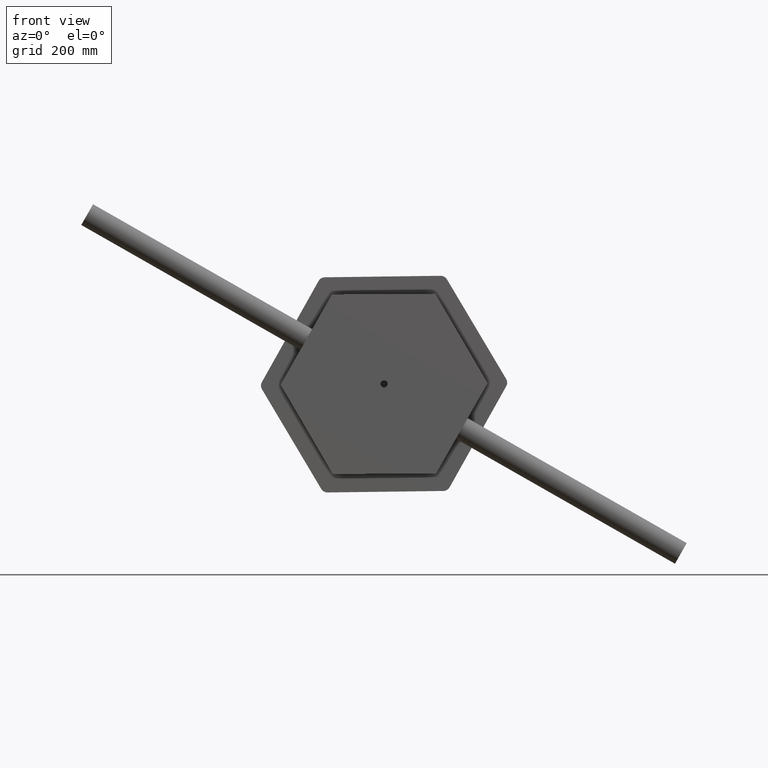
[diagram: clean part render]
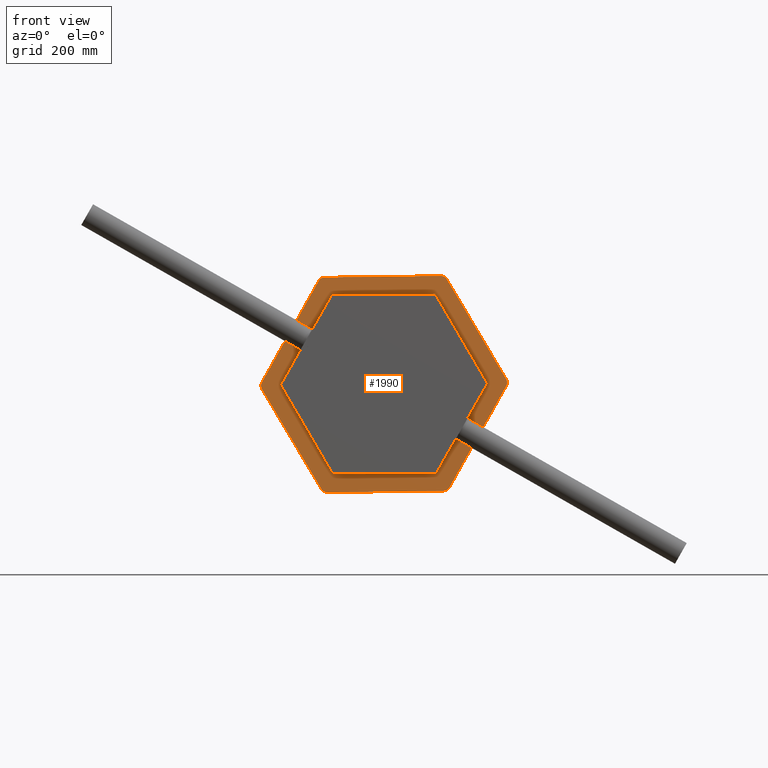
[diagram: same view with one face highlighted and labeled with its STEP entity id]
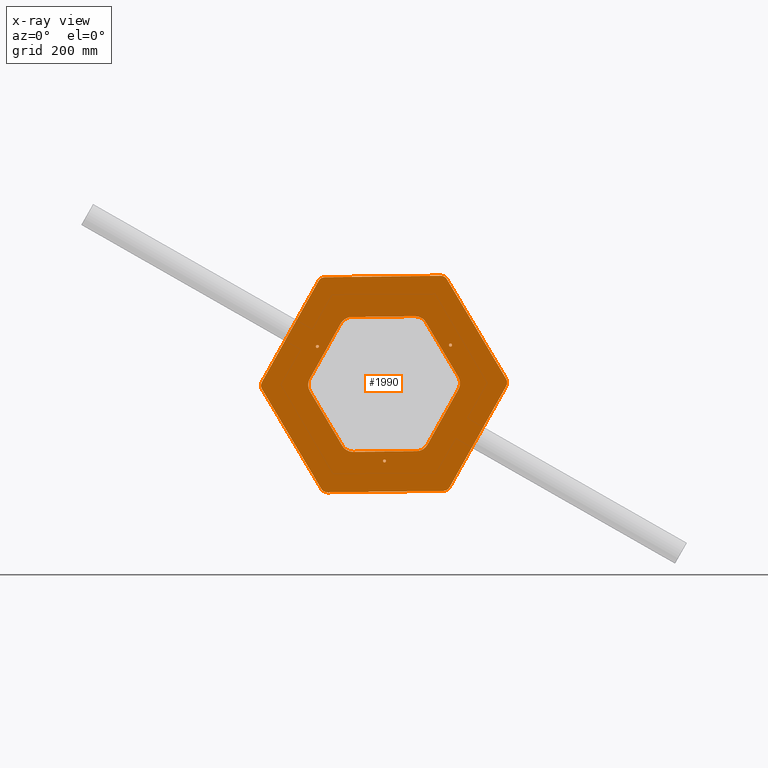
[diagram: x-ray of the same camera — body ghosted, the highlighted face saturated]
A machine part, front view. The second image highlights one B-rep face of the part: STEP entity #1990.
The next image is the same camera in x-ray: the body ghosted, the highlighted face saturated — about 0% of this face is hidden behind the body in this view.
In plain terms, the highlighted planar face has unit normal (-0, 1, -0).
Its self-contained STEP definition (entity closure, byte-faithful):
#84 = EDGE_CURVE ( 'NONE', #5810, #4075, #23431, .T. ) ;
#126 = CIRCLE ( 'NONE', #8567, 12.00000000000001066 ) ;
#365 = CARTESIAN_POINT ( 'NONE',  ( 64.49258023428309627, -110.8974878807650271, 0.0000000000000000000 ) ) ;
#405 = LINE ( 'NONE', #19145, #6575 ) ;
#561 = VERTEX_POINT ( 'NONE', #25670 ) ;
#608 = VERTEX_POINT ( 'NONE', #18104 ) ;
#644 = VERTEX_POINT ( 'NONE', #7818 ) ;
#780 = EDGE_CURVE ( 'NONE', #4075, #23348, #22827, .T. ) ;
#1106 = CARTESIAN_POINT ( 'NONE',  ( 180.0000000000001705, 96.99484522385721164, 0.0000000000000000000 ) ) ;
#1157 = CARTESIAN_POINT ( 'NONE',  ( -102.2335756172569035, -71.23590584283081739, 0.0000000000000000000 ) ) ;
#1326 = EDGE_CURVE ( 'NONE', #6167, #14923, #405, .T. ) ;
#1394 = ORIENTED_EDGE ( 'NONE', *, *, #21909, .T. ) ;
#1468 = DIRECTION ( 'NONE',  ( 1.000000000000000000, 0.0000000000000000000, -3.697785493223490101E-32 ) ) ;
#1494 = VERTEX_POINT ( 'NONE', #13279 ) ;
#1603 = VERTEX_POINT ( 'NONE', #9602 ) ;
#1658 = DIRECTION ( 'NONE',  ( 2.465190328815661892E-32, 2.209041646212159523E-31, -1.000000000000000000 ) ) ;
#1785 = CIRCLE ( 'NONE', #6561, 12.00000000000001066 ) ;
#1791 = ORIENTED_EDGE ( 'NONE', *, *, #19131, .F. ) ;
#1810 = VERTEX_POINT ( 'NONE', #2226 ) ;
#1943 = EDGE_CURVE ( 'NONE', #12946, #32106, #13625, .T. ) ;
#1990 = ADVANCED_FACE ( 'NONE', ( #32776, #25944, #12202, #5293, #31969 ), #24203, .F. ) ;
#2054 = VERTEX_POINT ( 'NONE', #22561 ) ;
#2192 = CARTESIAN_POINT ( 'NONE',  ( -128.5606159927934016, -0.9905632959438664953, 0.0000000000000000000 ) ) ;
#2226 = CARTESIAN_POINT ( 'NONE',  ( -180.0000000000001990, 96.99484522385718321, 0.0000000000000000000 ) ) ;
#2241 = CARTESIAN_POINT ( 'NONE',  ( 10.57531631285928242, 124.1548265256773078, 0.0000000000000000000 ) ) ;
#2981 = VECTOR ( 'NONE', #20474, 1000.000000000000114 ) ;
#3006 = DIRECTION ( 'NONE',  ( -1.000000000000000000, 0.0000000000000000000, 3.697785493223486269E-32 ) ) ;
#3247 = EDGE_CURVE ( 'NONE', #23348, #10241, #32062, .T. ) ;
#3532 = CARTESIAN_POINT ( 'NONE',  ( -112.8088919301162178, -2.775557561562891351E-14, 0.0000000000000000000 ) ) ;
#3857 = ORIENTED_EDGE ( 'NONE', *, *, #8506, .F. ) ;
#3871 = ORIENTED_EDGE ( 'NONE', *, *, #12719, .T. ) ;
#4011 = DIRECTION ( 'NONE',  ( 0.8660254037844385966, 0.4999999999999998890, -1.479114197289395821E-31 ) ) ;
#4075 = VERTEX_POINT ( 'NONE', #6337 ) ;
#4200 = CIRCLE ( 'NONE', #25917, 12.00000000000001066 ) ;
#4573 = DIRECTION ( 'NONE',  ( 2.465190328815661892E-32, 2.209041646212159523E-31, -1.000000000000000000 ) ) ;
#4839 = DIRECTION ( 'NONE',  ( -1.000000000000000000, 0.0000000000000000000, 3.697785493223476416E-32 ) ) ;
#5257 = VERTEX_POINT ( 'NONE', #8679 ) ;
#5293 = FACE_BOUND ( 'NONE', #10434, .T. ) ;
#5426 = CIRCLE ( 'NONE', #22372, 2.499999999999932943 ) ;
#5810 = VERTEX_POINT ( 'NONE', #29427 ) ;
#5830 = ORIENTED_EDGE ( 'NONE', *, *, #14311, .T. ) ;
#5915 = AXIS2_PLACEMENT_3D ( 'NONE', #23746, #23693, #23623 ) ;
#5954 = ORIENTED_EDGE ( 'NONE', *, *, #1943, .T. ) ;
#6069 = LINE ( 'NONE', #11754, #12156 ) ;
#6167 = VERTEX_POINT ( 'NONE', #15297 ) ;
#6169 = DIRECTION ( 'NONE',  ( 4.735795089416679423E-16, -1.000000000000000000, 2.863857827303817086E-31 ) ) ;
#6270 = CARTESIAN_POINT ( 'NONE',  ( 102.2335756172568040, 71.23590584283090266, 1.387778780781445676E-14 ) ) ;
#6337 = CARTESIAN_POINT ( 'NONE',  ( 102.2335756172568040, 71.23590584283090266, 1.387778780781445676E-14 ) ) ;
#6345 = ORIENTED_EDGE ( 'NONE', *, *, #23917, .F. ) ;
#6479 = CARTESIAN_POINT ( 'NONE',  ( 112.8088919301160757, 60.69584912965074608, -3.969378218359469749E-30 ) ) ;
#6506 = CARTESIAN_POINT ( 'NONE',  ( 112.8088919301160331, 52.91892068284674622, 0.0000000000000000000 ) ) ;
#6561 = AXIS2_PLACEMENT_3D ( 'NONE', #10248, #28282, #12808 ) ;
#6575 = VECTOR ( 'NONE', #18454, 1000.000000000000000 ) ;
#6827 = CARTESIAN_POINT ( 'NONE',  ( 61.19974159824987225, 111.8859771665177902, 9.244463733058806539E-32 ) ) ;
#6840 = DIRECTION ( 'NONE',  ( -9.471590178833358847E-16, 1.000000000000000000, -2.039559811106081017E-31 ) ) ;
#6871 = CIRCLE ( 'NONE', #31927, 12.00000000000001066 ) ;
#7215 = EDGE_CURVE ( 'NONE', #1810, #5257, #4200, .T. ) ;
#7233 = ORIENTED_EDGE ( 'NONE', *, *, #7215, .T. ) ;
#7402 = LINE ( 'NONE', #3532, #20326 ) ;
#7818 = CARTESIAN_POINT ( 'NONE',  ( -131.0606159927933163, -0.9905632959438664953, 9.244463733058391623E-32 ) ) ;
#7928 = LINE ( 'NONE', #24918, #13969 ) ;
#8311 = DIRECTION ( 'NONE',  ( 0.8660254037844387076, -0.4999999999999998335, 4.930380657631319952E-32 ) ) ;
#8460 = EDGE_CURVE ( 'NONE', #608, #30665, #19077, .T. ) ;
#8506 = EDGE_CURVE ( 'NONE', #23437, #5257, #30400, .T. ) ;
#8567 = AXIS2_PLACEMENT_3D ( 'NONE', #17224, #1658, #19813 ) ;
#8614 = CARTESIAN_POINT ( 'NONE',  ( 108.9685932156029367, 67.34744161942893470, -2.594684408512079348E-30 ) ) ;
#8679 = CARTESIAN_POINT ( 'NONE',  ( -174.0000000000002274, 107.3871500692704188, 0.0000000000000000000 ) ) ;
#8781 = CARTESIAN_POINT ( 'NONE',  ( -168.0000000000001705, 96.99484522385718321, 0.0000000000000000000 ) ) ;
#8858 = AXIS2_PLACEMENT_3D ( 'NONE', #25313, #9892, #27920 ) ;
#8882 = ORIENTED_EDGE ( 'NONE', *, *, #84, .T. ) ;
#9106 = CARTESIAN_POINT ( 'NONE',  ( 63.69974159824990068, 111.8859771665177902, 0.0000000000000000000 ) ) ;
#9400 = ORIENTED_EDGE ( 'NONE', *, *, #22097, .T. ) ;
#9588 = ORIENTED_EDGE ( 'NONE', *, *, #24652, .T. ) ;
#9602 = CARTESIAN_POINT ( 'NONE',  ( 180.0000000000001705, -96.99484522385721164, 0.0000000000000000000 ) ) ;
#9664 = VERTEX_POINT ( 'NONE', #21780 ) ;
#9709 = EDGE_CURVE ( 'NONE', #1603, #14923, #33126, .T. ) ;
#9892 = DIRECTION ( 'NONE',  ( 2.465190328815661892E-32, 2.209041646212159523E-31, -1.000000000000000000 ) ) ;
#10003 = CARTESIAN_POINT ( 'NONE',  ( -102.2335756172569035, -71.23590584283081739, 0.0000000000000000000 ) ) ;
#10216 = CARTESIAN_POINT ( 'NONE',  ( -10.57531631285922913, 124.1548265256772794, 0.0000000000000000000 ) ) ;
#10241 = VERTEX_POINT ( 'NONE', #27732 ) ;
#10248 = CARTESIAN_POINT ( 'NONE',  ( -168.0000000000001137, -96.99484522385724006, 1.387778780781445676E-14 ) ) ;
#10259 = CIRCLE ( 'NONE', #29560, 2.499999999999919176 ) ;
#10305 =( BOUNDED_CURVE ( )  B_SPLINE_CURVE ( 3, ( #29913, #14443, #32502, #17042 ),
 .UNSPECIFIED., .F., .F. ) 
 B_SPLINE_CURVE_WITH_KNOTS ( ( 4, 4 ),
 ( 2.640144173555564411, 3.643041133624030703 ),
 .UNSPECIFIED. ) 
 CURVE ( )  GEOMETRIC_REPRESENTATION_ITEM ( )  RATIONAL_B_SPLINE_CURVE ( ( 1.000000000000000000, 0.9179248021248422873, 0.9179248021248422873, 1.000000000000000000 ) ) 
 REPRESENTATION_ITEM ( '' )  );
#10432 = CARTESIAN_POINT ( 'NONE',  ( 10.57531631285928242, 124.1548265256773078, 0.0000000000000000000 ) ) ;
#10434 = EDGE_LOOP ( 'NONE', ( #9588, #31964, #5830, #1394, #11033, #8882, #30172, #26588, #9400, #5954, #32695, #12815 ) ) ;
#10610 = CARTESIAN_POINT ( 'NONE',  ( -6.000000000000014211, 204.3819952931277157, 0.0000000000000000000 ) ) ;
#10618 = CARTESIAN_POINT ( 'NONE',  ( 3.840298714513159961, 128.0432907490793184, -6.627899148478521488E-30 ) ) ;
#10780 = ORIENTED_EDGE ( 'NONE', *, *, #28541, .T. ) ;
#11001 = CARTESIAN_POINT ( 'NONE',  ( 61.99258023428316733, -110.8974878807650271, 9.244463733058467162E-32 ) ) ;
#11033 = ORIENTED_EDGE ( 'NONE', *, *, #12713, .T. ) ;
#11094 = DIRECTION ( 'NONE',  ( 2.465190328815661892E-32, 2.209041646212159523E-31, -1.000000000000000000 ) ) ;
#11301 = LINE ( 'NONE', #13152, #31861 ) ;
#11385 = DIRECTION ( 'NONE',  ( 1.000000000000000000, 3.469446951953611033E-15, -3.697785493223411278E-32 ) ) ;
#11644 = CARTESIAN_POINT ( 'NONE',  ( -3.840298714513107559, 128.0432907490793184, -6.817240493494143771E-30 ) ) ;
#11712 = DIRECTION ( 'NONE',  ( -1.000000000000000000, 0.0000000000000000000, 3.697785493223488459E-32 ) ) ;
#11754 = CARTESIAN_POINT ( 'NONE',  ( 56.40444596505810182, -97.69536618425401286, 1.387778780781445676E-14 ) ) ;
#11802 = EDGE_CURVE ( 'NONE', #27040, #20625, #13661, .T. ) ;
#11867 = CARTESIAN_POINT ( 'NONE',  ( -10.57531631285923979, -124.1548265256773362, 0.0000000000000000000 ) ) ;
#12156 = VECTOR ( 'NONE', #4011, 1000.000000000000227 ) ;
#12202 = FACE_BOUND ( 'NONE', #29752, .T. ) ;
#12294 = ORIENTED_EDGE ( 'NONE', *, *, #11802, .T. ) ;
#12354 = CARTESIAN_POINT ( 'NONE',  ( 180.0000000000001705, -103.9230484541326973, 0.0000000000000000000 ) ) ;
#12450 = ORIENTED_EDGE ( 'NONE', *, *, #21500, .F. ) ;
#12484 = CARTESIAN_POINT ( 'NONE',  ( 174.0000000000001421, -107.3871500692704899, 0.0000000000000000000 ) ) ;
#12567 = CARTESIAN_POINT ( 'NONE',  ( 63.69974159824990068, 111.8859771665177902, 0.0000000000000000000 ) ) ;
#12575 = ORIENTED_EDGE ( 'NONE', *, *, #13946, .F. ) ;
#12713 = EDGE_CURVE ( 'NONE', #9664, #5810, #7928, .T. ) ;
#12719 = EDGE_CURVE ( 'NONE', #6167, #30442, #126, .T. ) ;
#12808 = DIRECTION ( 'NONE',  ( 1.000000000000000000, -2.312964634635740689E-15, 0.0000000000000000000 ) ) ;
#12815 = ORIENTED_EDGE ( 'NONE', *, *, #30648, .T. ) ;
#12946 = VERTEX_POINT ( 'NONE', #12948 ) ;
#12948 = CARTESIAN_POINT ( 'NONE',  ( -102.2335756172569887, 71.23590584283077476, 0.0000000000000000000 ) ) ;
#12997 = LINE ( 'NONE', #33271, #33555 ) ;
#13152 = CARTESIAN_POINT ( 'NONE',  ( -180.0000000000001990, 103.9230484541326689, 0.0000000000000000000 ) ) ;
#13249 = CARTESIAN_POINT ( 'NONE',  ( -174.0000000000001137, -107.3871500692705467, 0.0000000000000000000 ) ) ;
#13279 = CARTESIAN_POINT ( 'NONE',  ( 66.19974159824991489, 111.8859771665177902, 0.0000000000000000000 ) ) ;
#13625 =( BOUNDED_CURVE ( )  B_SPLINE_CURVE ( 3, ( #25994, #26328, #26709, #26032 ),
 .UNSPECIFIED., .F., .T. ) 
 B_SPLINE_CURVE_WITH_KNOTS ( ( 4, 4 ),
 ( 2.640144173555560858, 3.643041133624025374 ),
 .UNSPECIFIED. ) 
 CURVE ( )  GEOMETRIC_REPRESENTATION_ITEM ( )  RATIONAL_B_SPLINE_CURVE ( ( 1.000000000000000000, 0.9179248021248425093, 0.9179248021248425093, 1.000000000000000000 ) ) 
 REPRESENTATION_ITEM ( '' )  );
#13661 = CIRCLE ( 'NONE', #22132, 12.00000000000001066 ) ;
#13908 = ORIENTED_EDGE ( 'NONE', *, *, #19220, .T. ) ;
#13941 = CARTESIAN_POINT ( 'NONE',  ( -126.0606159927934726, -0.9905632959438662732, 6.162975822038932493E-32 ) ) ;
#13946 = EDGE_CURVE ( 'NONE', #27040, #26777, #12997, .T. ) ;
#13969 = VECTOR ( 'NONE', #6840, 1000.000000000000000 ) ;
#14005 = CIRCLE ( 'NONE', #8858, 2.499999999999919176 ) ;
#14311 = EDGE_CURVE ( 'NONE', #30665, #2054, #6069, .T. ) ;
#14427 = CARTESIAN_POINT ( 'NONE',  ( 3.840298714513118217, -128.0432907490793184, 4.826576614464210706E-30 ) ) ;
#14443 = CARTESIAN_POINT ( 'NONE',  ( 108.9685932156030646, -67.34744161942882101, 1.604914286885437753E-30 ) ) ;
#14923 = VERTEX_POINT ( 'NONE', #12484 ) ;
#14931 = DIRECTION ( 'NONE',  ( 0.0000000000000000000, 1.000000000000000000, -2.210967576156545008E-31 ) ) ;
#15021 = CARTESIAN_POINT ( 'NONE',  ( 10.57531631285922380, -124.1548265256773078, 0.0000000000000000000 ) ) ;
#15053 = EDGE_CURVE ( 'NONE', #1810, #19178, #11301, .T. ) ;
#15145 = DIRECTION ( 'NONE',  ( -1.000000000000000000, 0.0000000000000000000, 3.697785493223488459E-32 ) ) ;
#15297 = CARTESIAN_POINT ( 'NONE',  ( 5.999999999999992895, -204.3819952931276305, 0.0000000000000000000 ) ) ;
#15314 = DIRECTION ( 'NONE',  ( 2.465190328815661892E-32, 2.209041646212159523E-31, -1.000000000000000000 ) ) ;
#16142 = VECTOR ( 'NONE', #8311, 1000.000000000000114 ) ;
#16919 = ORIENTED_EDGE ( 'NONE', *, *, #1326, .F. ) ;
#17040 = DIRECTION ( 'NONE',  ( 2.465190328815661892E-32, 2.209041646212159523E-31, -1.000000000000000000 ) ) ;
#17042 = CARTESIAN_POINT ( 'NONE',  ( 112.8088919301161752, -52.91892068284658990, 0.0000000000000000000 ) ) ;
#17125 = CARTESIAN_POINT ( 'NONE',  ( 1.214306433183764966E-14, 207.8460969082653946, 0.0000000000000000000 ) ) ;
#17224 = CARTESIAN_POINT ( 'NONE',  ( -1.734723475976807094E-14, -193.9896904477143948, 0.0000000000000000000 ) ) ;
#17235 = ORIENTED_EDGE ( 'NONE', *, *, #27605, .F. ) ;
#17623 = EDGE_CURVE ( 'NONE', #29449, #30442, #32076, .T. ) ;
#17656 = CARTESIAN_POINT ( 'NONE',  ( -112.8088919301162463, -60.69584912965064660, 3.969378218359464143E-30 ) ) ;
#18062 = LINE ( 'NONE', #12354, #24932 ) ;
#18104 = CARTESIAN_POINT ( 'NONE',  ( -10.57531631285923979, -124.1548265256773362, 0.0000000000000000000 ) ) ;
#18365 = VECTOR ( 'NONE', #20232, 999.9999999999998863 ) ;
#18454 = DIRECTION ( 'NONE',  ( 0.8660254037844385966, 0.5000000000000001110, -1.479114197289395821E-31 ) ) ;
#18557 = DIRECTION ( 'NONE',  ( 2.465190328815661892E-32, 2.209041646212159523E-31, -1.000000000000000000 ) ) ;
#18673 = CIRCLE ( 'NONE', #18938, 2.500000000000023093 ) ;
#18938 = AXIS2_PLACEMENT_3D ( 'NONE', #9106, #27152, #11712 ) ;
#19030 = AXIS2_PLACEMENT_3D ( 'NONE', #12567, #30604, #15145 ) ;
#19060 = CARTESIAN_POINT ( 'NONE',  ( -112.8088919301161894, -52.91892068284661832, 0.0000000000000000000 ) ) ;
#19077 =( BOUNDED_CURVE ( )  B_SPLINE_CURVE ( 3, ( #11867, #29896, #14427, #32486 ),
 .UNSPECIFIED., .F., .F. ) 
 B_SPLINE_CURVE_WITH_KNOTS ( ( 4, 4 ),
 ( 2.640144173555560858, 3.643041133624025374 ),
 .UNSPECIFIED. ) 
 CURVE ( )  GEOMETRIC_REPRESENTATION_ITEM ( )  RATIONAL_B_SPLINE_CURVE ( ( 1.000000000000000000, 0.9179248021248425093, 0.9179248021248425093, 1.000000000000000000 ) ) 
 REPRESENTATION_ITEM ( '' )  );
#19131 = EDGE_CURVE ( 'NONE', #1603, #20625, #18062, .T. ) ;
#19145 = CARTESIAN_POINT ( 'NONE',  ( -3.469446951953614189E-14, -207.8460969082654231, 0.0000000000000000000 ) ) ;
#19178 = VERTEX_POINT ( 'NONE', #33209 ) ;
#19220 = EDGE_CURVE ( 'NONE', #29449, #19178, #1785, .T. ) ;
#19427 = CARTESIAN_POINT ( 'NONE',  ( 174.0000000000001421, 107.3871500692704473, 0.0000000000000000000 ) ) ;
#19509 = VECTOR ( 'NONE', #29936, 1000.000000000000114 ) ;
#19813 = DIRECTION ( 'NONE',  ( 1.000000000000000000, 0.0000000000000000000, -3.697785493223490101E-32 ) ) ;
#20066 = ORIENTED_EDGE ( 'NONE', *, *, #17623, .F. ) ;
#20075 = ORIENTED_EDGE ( 'NONE', *, *, #15053, .F. ) ;
#20086 = CARTESIAN_POINT ( 'NONE',  ( 64.49258023428309627, -110.8974878807650271, 0.0000000000000000000 ) ) ;
#20098 = ORIENTED_EDGE ( 'NONE', *, *, #32914, .F. ) ;
#20221 = CARTESIAN_POINT ( 'NONE',  ( -108.9685932156030930, -67.34744161942884944, 2.594684408512065335E-30 ) ) ;
#20232 = DIRECTION ( 'NONE',  ( 0.8660254037844387076, -0.5000000000000001110, 7.395570986446982391E-32 ) ) ;
#20310 = EDGE_CURVE ( 'NONE', #561, #22475, #5426, .T. ) ;
#20326 = VECTOR ( 'NONE', #6169, 1000.000000000000000 ) ;
#20334 = DIRECTION ( 'NONE',  ( 2.465190328815661892E-32, 2.209041646212159523E-31, -1.000000000000000000 ) ) ;
#20474 = DIRECTION ( 'NONE',  ( -0.8660254037844387076, 0.4999999999999997224, -6.162975822039148161E-32 ) ) ;
#20625 = VERTEX_POINT ( 'NONE', #1106 ) ;
#20863 = EDGE_LOOP ( 'NONE', ( #20098, #25202 ) ) ;
#21079 = CIRCLE ( 'NONE', #33523, 2.499999999999932943 ) ;
#21120 = LINE ( 'NONE', #32425, #19509 ) ;
#21500 = EDGE_CURVE ( 'NONE', #644, #32604, #10259, .T. ) ;
#21780 = CARTESIAN_POINT ( 'NONE',  ( 112.8088919301161752, -52.91892068284658990, 0.0000000000000000000 ) ) ;
#21909 = EDGE_CURVE ( 'NONE', #2054, #9664, #10305, .T. ) ;
#22097 = EDGE_CURVE ( 'NONE', #10241, #12946, #21120, .T. ) ;
#22132 = AXIS2_PLACEMENT_3D ( 'NONE', #30752, #15314, #33335 ) ;
#22372 = AXIS2_PLACEMENT_3D ( 'NONE', #20086, #4573, #22675 ) ;
#22475 = VERTEX_POINT ( 'NONE', #11001 ) ;
#22561 = CARTESIAN_POINT ( 'NONE',  ( 102.2335756172569319, -71.23590584283078897, 0.0000000000000000000 ) ) ;
#22675 = DIRECTION ( 'NONE',  ( -1.000000000000000000, 0.0000000000000000000, 3.697785493223486269E-32 ) ) ;
#22819 = CARTESIAN_POINT ( 'NONE',  ( -180.0000000000001990, -103.9230484541327542, 0.0000000000000000000 ) ) ;
#22827 = LINE ( 'NONE', #23105, #2981 ) ;
#23105 = CARTESIAN_POINT ( 'NONE',  ( 56.40444596505808761, 97.69536618425405550, 1.387778780781445676E-14 ) ) ;
#23348 = VERTEX_POINT ( 'NONE', #2241 ) ;
#23431 =( BOUNDED_CURVE ( )  B_SPLINE_CURVE ( 3, ( #6506, #6479, #8614, #6270 ),
 .UNSPECIFIED., .F., .T. ) 
 B_SPLINE_CURVE_WITH_KNOTS ( ( 4, 4 ),
 ( 2.640144173555559082, 3.643041133624024042 ),
 .UNSPECIFIED. ) 
 CURVE ( )  GEOMETRIC_REPRESENTATION_ITEM ( )  RATIONAL_B_SPLINE_CURVE ( ( 1.000000000000000000, 0.9179248021248423983, 0.9179248021248423983, 1.000000000000000000 ) ) 
 REPRESENTATION_ITEM ( '' )  );
#23437 = VERTEX_POINT ( 'NONE', #10610 ) ;
#23623 = DIRECTION ( 'NONE',  ( 1.000000000000000000, 0.0000000000000000000, -3.697785493223489554E-32 ) ) ;
#23693 = DIRECTION ( 'NONE',  ( 3.697785493223489554E-32, -2.209041646212159523E-31, 1.000000000000000000 ) ) ;
#23746 = CARTESIAN_POINT ( 'NONE',  ( 0.0000000000000000000, 0.0000000000000000000, 0.0000000000000000000 ) ) ;
#23917 = EDGE_CURVE ( 'NONE', #31701, #1494, #33113, .T. ) ;
#24203 = PLANE ( 'NONE',  #5915 ) ;
#24652 = EDGE_CURVE ( 'NONE', #32160, #608, #28255, .T. ) ;
#24918 = CARTESIAN_POINT ( 'NONE',  ( 112.8088919301161184, 1.110223024625156540E-13, 0.0000000000000000000 ) ) ;
#24932 = VECTOR ( 'NONE', #14931, 1000.000000000000000 ) ;
#25122 = ORIENTED_EDGE ( 'NONE', *, *, #9709, .T. ) ;
#25202 = ORIENTED_EDGE ( 'NONE', *, *, #20310, .F. ) ;
#25313 = CARTESIAN_POINT ( 'NONE',  ( -128.5606159927934016, -0.9905632959438664953, 0.0000000000000000000 ) ) ;
#25433 = CARTESIAN_POINT ( 'NONE',  ( -112.8088919301161894, -52.91892068284661832, 0.0000000000000000000 ) ) ;
#25522 = DIRECTION ( 'NONE',  ( -0.8660254037844385966, 0.5000000000000001110, -8.628166150854811148E-32 ) ) ;
#25670 = CARTESIAN_POINT ( 'NONE',  ( 66.99258023428303943, -110.8974878807649844, 0.0000000000000000000 ) ) ;
#25888 = EDGE_CURVE ( 'NONE', #32106, #33492, #7402, .T. ) ;
#25906 = CARTESIAN_POINT ( 'NONE',  ( 6.000000000000039080, 204.3819952931276021, 0.0000000000000000000 ) ) ;
#25917 = AXIS2_PLACEMENT_3D ( 'NONE', #8781, #26829, #11385 ) ;
#25944 = FACE_BOUND ( 'NONE', #26143, .T. ) ;
#25994 = CARTESIAN_POINT ( 'NONE',  ( -102.2335756172569887, 71.23590584283077476, 0.0000000000000000000 ) ) ;
#26032 = CARTESIAN_POINT ( 'NONE',  ( -112.8088919301162463, 52.91892068284662543, 0.0000000000000000000 ) ) ;
#26143 = EDGE_LOOP ( 'NONE', ( #12450, #33114 ) ) ;
#26328 = CARTESIAN_POINT ( 'NONE',  ( -108.9685932156031214, 67.34744161942880680, -1.306547803845800101E-30 ) ) ;
#26540 = CARTESIAN_POINT ( 'NONE',  ( 6.938893903907228378E-15, 193.9896904477144233, 1.387778780781445676E-14 ) ) ;
#26588 = ORIENTED_EDGE ( 'NONE', *, *, #3247, .T. ) ;
#26589 = CARTESIAN_POINT ( 'NONE',  ( -6.000000000000127010, -204.3819952931277442, 0.0000000000000000000 ) ) ;
#26709 = CARTESIAN_POINT ( 'NONE',  ( -112.8088919301162321, 60.69584912965062529, -2.870582958708811908E-30 ) ) ;
#26777 = VERTEX_POINT ( 'NONE', #25906 ) ;
#26829 = DIRECTION ( 'NONE',  ( 2.465190328815661892E-32, 2.209041646212159523E-31, -1.000000000000000000 ) ) ;
#26948 = EDGE_LOOP ( 'NONE', ( #3857, #10780, #12575, #12294, #1791, #25122, #16919, #3871, #20066, #13908, #20075, #7233 ) ) ;
#27040 = VERTEX_POINT ( 'NONE', #19427 ) ;
#27152 = DIRECTION ( 'NONE',  ( 2.465190328815661892E-32, 2.209041646212159523E-31, -1.000000000000000000 ) ) ;
#27605 = EDGE_CURVE ( 'NONE', #1494, #31701, #18673, .T. ) ;
#27732 = CARTESIAN_POINT ( 'NONE',  ( -10.57531631285922913, 124.1548265256772794, 0.0000000000000000000 ) ) ;
#27920 = DIRECTION ( 'NONE',  ( -1.000000000000000000, 0.0000000000000000000, 3.697785493223476416E-32 ) ) ;
#28255 = LINE ( 'NONE', #31444, #16142 ) ;
#28282 = DIRECTION ( 'NONE',  ( 2.465190328815661892E-32, 2.209041646212159523E-31, -1.000000000000000000 ) ) ;
#28541 = EDGE_CURVE ( 'NONE', #23437, #26777, #6871, .T. ) ;
#28587 = AXIS2_PLACEMENT_3D ( 'NONE', #32500, #17040, #1468 ) ;
#28621 = DIRECTION ( 'NONE',  ( 0.0000000000000000000, -1.000000000000000000, 2.210967576156545446E-31 ) ) ;
#29109 = DIRECTION ( 'NONE',  ( 1.000000000000000000, 0.0000000000000000000, 0.0000000000000000000 ) ) ;
#29193 =( BOUNDED_CURVE ( )  B_SPLINE_CURVE ( 3, ( #25433, #17656, #20221, #10003 ),
 .UNSPECIFIED., .F., .T. ) 
 B_SPLINE_CURVE_WITH_KNOTS ( ( 4, 4 ),
 ( 2.640144173555559970, 3.643041133624028483 ),
 .UNSPECIFIED. ) 
 CURVE ( )  GEOMETRIC_REPRESENTATION_ITEM ( )  RATIONAL_B_SPLINE_CURVE ( ( 1.000000000000000000, 0.9179248021248418432, 0.9179248021248418432, 1.000000000000000000 ) ) 
 REPRESENTATION_ITEM ( '' )  );
#29389 = CARTESIAN_POINT ( 'NONE',  ( -112.8088919301162463, 52.91892068284662543, 0.0000000000000000000 ) ) ;
#29427 = CARTESIAN_POINT ( 'NONE',  ( 112.8088919301160331, 52.91892068284674622, 0.0000000000000000000 ) ) ;
#29449 = VERTEX_POINT ( 'NONE', #13249 ) ;
#29560 = AXIS2_PLACEMENT_3D ( 'NONE', #2192, #20334, #4839 ) ;
#29608 = VECTOR ( 'NONE', #32596, 1000.000000000000000 ) ;
#29752 = EDGE_LOOP ( 'NONE', ( #6345, #17235 ) ) ;
#29896 = CARTESIAN_POINT ( 'NONE',  ( -3.840298714513128431, -128.0432907490793184, 4.637235269448589825E-30 ) ) ;
#29913 = CARTESIAN_POINT ( 'NONE',  ( 102.2335756172569319, -71.23590584283078897, 0.0000000000000000000 ) ) ;
#29936 = DIRECTION ( 'NONE',  ( -0.8660254037844388186, -0.4999999999999997224, 1.479114197289396040E-31 ) ) ;
#30172 = ORIENTED_EDGE ( 'NONE', *, *, #780, .T. ) ;
#30400 = LINE ( 'NONE', #17125, #29608 ) ;
#30442 = VERTEX_POINT ( 'NONE', #26589 ) ;
#30604 = DIRECTION ( 'NONE',  ( 2.465190328815661892E-32, 2.209041646212159523E-31, -1.000000000000000000 ) ) ;
#30640 = EDGE_CURVE ( 'NONE', #32604, #644, #14005, .T. ) ;
#30648 = EDGE_CURVE ( 'NONE', #33492, #32160, #29193, .T. ) ;
#30665 = VERTEX_POINT ( 'NONE', #15021 ) ;
#30752 = CARTESIAN_POINT ( 'NONE',  ( 168.0000000000001421, 96.99484522385721164, 0.0000000000000000000 ) ) ;
#31444 = CARTESIAN_POINT ( 'NONE',  ( -56.40444596505808761, -97.69536618425395602, 1.387778780781445676E-14 ) ) ;
#31701 = VERTEX_POINT ( 'NONE', #6827 ) ;
#31861 = VECTOR ( 'NONE', #28621, 1000.000000000000000 ) ;
#31927 = AXIS2_PLACEMENT_3D ( 'NONE', #26540, #11094, #29109 ) ;
#31964 = ORIENTED_EDGE ( 'NONE', *, *, #8460, .T. ) ;
#31969 = FACE_OUTER_BOUND ( 'NONE', #26948, .T. ) ;
#32062 =( BOUNDED_CURVE ( )  B_SPLINE_CURVE ( 3, ( #10432, #10618, #11644, #10216 ),
 .UNSPECIFIED., .F., .T. ) 
 B_SPLINE_CURVE_WITH_KNOTS ( ( 4, 4 ),
 ( 2.640144173555559082, 3.643041133624026706 ),
 .UNSPECIFIED. ) 
 CURVE ( )  GEOMETRIC_REPRESENTATION_ITEM ( )  RATIONAL_B_SPLINE_CURVE ( ( 1.000000000000000000, 0.9179248021248419542, 0.9179248021248419542, 1.000000000000000000 ) ) 
 REPRESENTATION_ITEM ( '' )  );
#32076 = LINE ( 'NONE', #22819, #18365 ) ;
#32106 = VERTEX_POINT ( 'NONE', #29389 ) ;
#32160 = VERTEX_POINT ( 'NONE', #1157 ) ;
#32425 = CARTESIAN_POINT ( 'NONE',  ( -56.40444596505807340, 97.69536618425404129, 0.0000000000000000000 ) ) ;
#32486 = CARTESIAN_POINT ( 'NONE',  ( 10.57531631285922380, -124.1548265256773078, 0.0000000000000000000 ) ) ;
#32500 = CARTESIAN_POINT ( 'NONE',  ( 168.0000000000001990, -96.99484522385721164, 0.0000000000000000000 ) ) ;
#32502 = CARTESIAN_POINT ( 'NONE',  ( 112.8088919301161610, -60.69584912965060397, 3.168949441748447983E-30 ) ) ;
#32596 = DIRECTION ( 'NONE',  ( -0.8660254037844385966, -0.5000000000000001110, 1.848892746611744448E-31 ) ) ;
#32604 = VERTEX_POINT ( 'NONE', #13941 ) ;
#32695 = ORIENTED_EDGE ( 'NONE', *, *, #25888, .T. ) ;
#32776 = FACE_BOUND ( 'NONE', #20863, .T. ) ;
#32914 = EDGE_CURVE ( 'NONE', #22475, #561, #21079, .T. ) ;
#33113 = CIRCLE ( 'NONE', #19030, 2.500000000000023093 ) ;
#33114 = ORIENTED_EDGE ( 'NONE', *, *, #30640, .F. ) ;
#33126 = CIRCLE ( 'NONE', #28587, 12.00000000000001066 ) ;
#33209 = CARTESIAN_POINT ( 'NONE',  ( -180.0000000000001421, -96.99484522385721164, 1.387778780781445676E-14 ) ) ;
#33271 = CARTESIAN_POINT ( 'NONE',  ( 180.0000000000001705, 103.9230484541326973, 0.0000000000000000000 ) ) ;
#33335 = DIRECTION ( 'NONE',  ( 1.000000000000000000, -5.782411586589351722E-15, -3.697785493223607788E-32 ) ) ;
#33492 = VERTEX_POINT ( 'NONE', #19060 ) ;
#33523 = AXIS2_PLACEMENT_3D ( 'NONE', #365, #18557, #3006 ) ;
#33555 = VECTOR ( 'NONE', #25522, 1000.000000000000000 ) ;